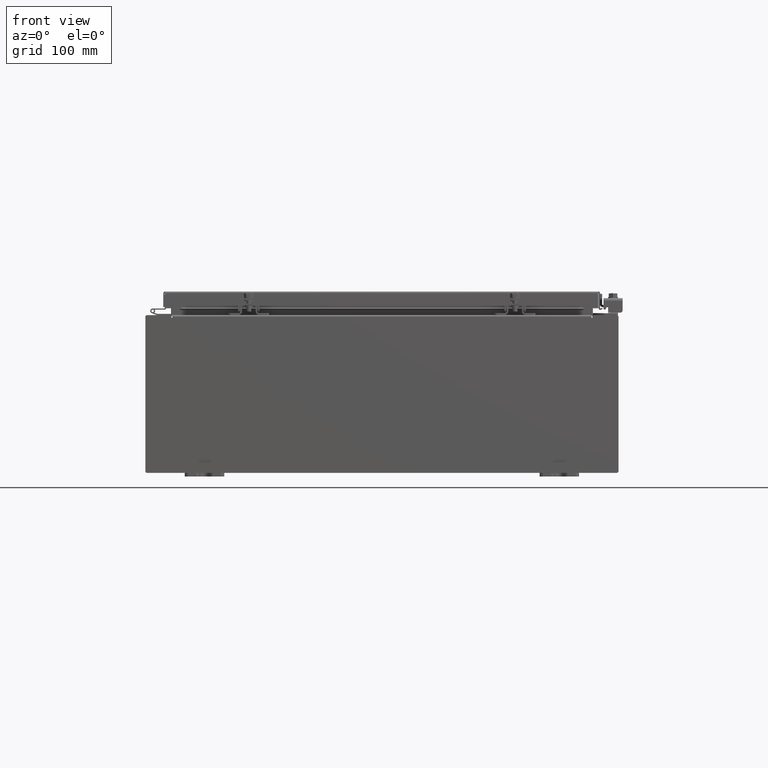
[diagram: clean part render]
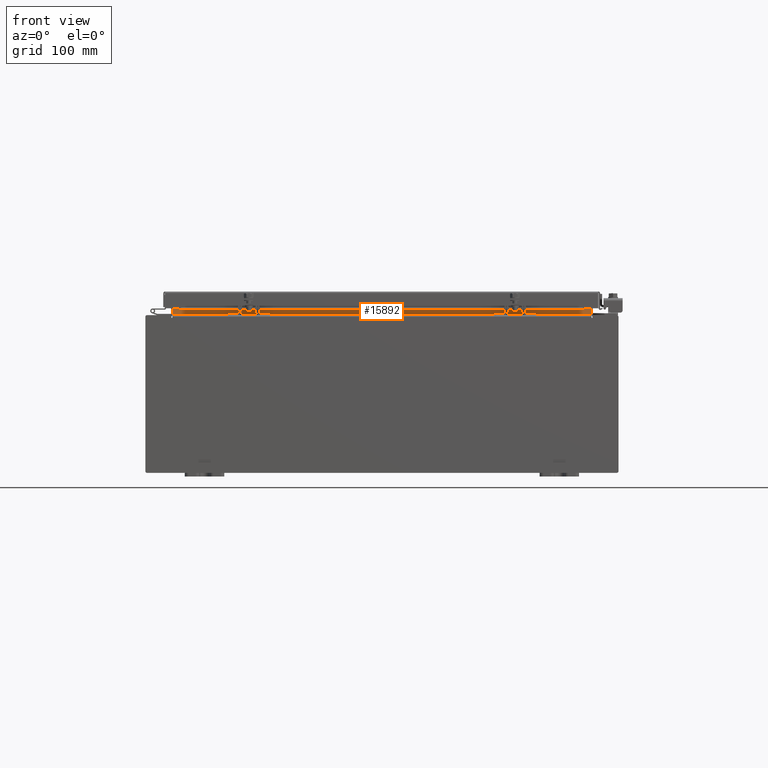
[diagram: same view with one face highlighted and labeled with its STEP entity id]
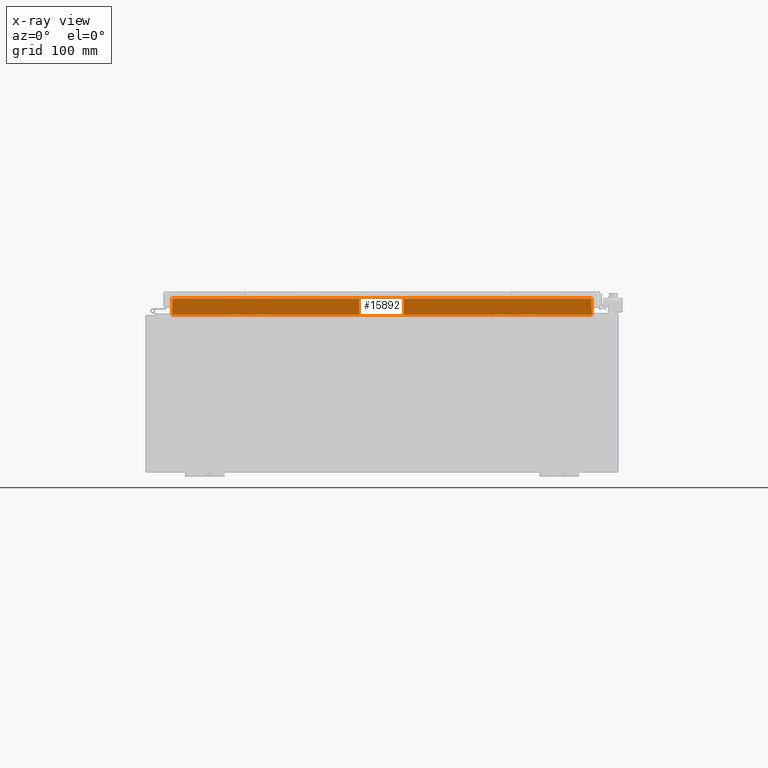
[diagram: x-ray of the same camera — body ghosted, the highlighted face saturated]
A machine part, front view. The second image highlights one B-rep face of the part: STEP entity #15892.
The next image is the same camera in x-ray: the body ghosted, the highlighted face saturated — about 0% of this face is hidden behind the body in this view.
In plain terms, the highlighted planar face has unit normal (-0, -1, 0).
Its self-contained STEP definition (entity closure, byte-faithful):
#1411 = DIRECTION ( 'NONE',  ( 1.000000000000000000, 3.225867722578232700E-016, 9.735187006375754600E-016 ) ) ;
#1952 = VERTEX_POINT ( 'NONE', #5038 ) ;
#2064 = ORIENTED_EDGE ( 'NONE', *, *, #23531, .F. ) ;
#3090 = FACE_OUTER_BOUND ( 'NONE', #14329, .T. ) ;
#3839 = CARTESIAN_POINT ( 'NONE',  ( 10.63720000000001400, -1.300299999999999300, 4.837600000000017000 ) ) ;
#4108 = VERTEX_POINT ( 'NONE', #9337 ) ;
#4479 = EDGE_CURVE ( 'NONE', #28393, #4108, #32213, .T. ) ;
#4931 = CARTESIAN_POINT ( 'NONE',  ( 10.63720000000001400, -1.300299999999999300, 4.925300000000017800 ) ) ;
#5038 = CARTESIAN_POINT ( 'NONE',  ( -10.63720000000000400, -1.300299999999999300, 4.012999999999996300 ) ) ;
#8604 = EDGE_CURVE ( 'NONE', #15209, #1952, #30557, .T. ) ;
#9337 = CARTESIAN_POINT ( 'NONE',  ( 10.63720000000001400, -1.300299999999999300, 4.837600000000017000 ) ) ;
#9916 = DIRECTION ( 'NONE',  ( 9.992007221626408900E-016, -2.013110121372521300E-016, 1.000000000000000000 ) ) ;
#10433 = EDGE_CURVE ( 'NONE', #4108, #15209, #10535, .T. ) ;
#10535 = LINE ( 'NONE', #3839, #30023 ) ;
#10979 = VECTOR ( 'NONE', #1411, 39.37007874015748100 ) ;
#11157 = PLANE ( 'NONE',  #19848 ) ;
#11561 = CARTESIAN_POINT ( 'NONE',  ( -10.63720000000000200, -1.300299999999999300, 4.012999999999996300 ) ) ;
#13732 = DIRECTION ( 'NONE',  ( 3.225867722578236700E-016, 1.000000000000000000, 2.013110121372518100E-016 ) ) ;
#14329 = EDGE_LOOP ( 'NONE', ( #18781, #26317, #23981, #2064 ) ) ;
#15209 = VERTEX_POINT ( 'NONE', #31509 ) ;
#15892 = ADVANCED_FACE ( 'NONE', ( #3090 ), #11157, .T. ) ;
#16544 = DIRECTION ( 'NONE',  ( -1.000000000000000000, -3.225867722578232700E-016, -9.992007221626408900E-016 ) ) ;
#17741 = LINE ( 'NONE', #11561, #10979 ) ;
#18655 = CARTESIAN_POINT ( 'NONE',  ( 10.63720000000000400, -1.300299999999999300, 4.013000000000016800 ) ) ;
#18781 = ORIENTED_EDGE ( 'NONE', *, *, #8604, .F. ) ;
#19848 = AXIS2_PLACEMENT_3D ( 'NONE', #31390, #13732, #31507 ) ;
#22977 = VECTOR ( 'NONE', #29191, 39.37007874015748100 ) ;
#23531 = EDGE_CURVE ( 'NONE', #1952, #28393, #17741, .T. ) ;
#23981 = ORIENTED_EDGE ( 'NONE', *, *, #4479, .F. ) ;
#26317 = ORIENTED_EDGE ( 'NONE', *, *, #10433, .F. ) ;
#26732 = CARTESIAN_POINT ( 'NONE',  ( -10.63720000000000200, -1.300299999999999300, 3.999999999999997800 ) ) ;
#28393 = VERTEX_POINT ( 'NONE', #18655 ) ;
#29191 = DIRECTION ( 'NONE',  ( -9.992007221626408900E-016, 2.013110121372521300E-016, -1.000000000000000000 ) ) ;
#30023 = VECTOR ( 'NONE', #16544, 39.37007874015748100 ) ;
#30557 = LINE ( 'NONE', #26732, #22977 ) ;
#31390 = CARTESIAN_POINT ( 'NONE',  ( -4.194595811711970300E-016, -1.300299999999999300, 3.278217592397115900E-015 ) ) ;
#31427 = VECTOR ( 'NONE', #9916, 39.37007874015748100 ) ;
#31507 = DIRECTION ( 'NONE',  ( 9.992007221626408900E-016, -2.013110121372521300E-016, 1.000000000000000000 ) ) ;
#31509 = CARTESIAN_POINT ( 'NONE',  ( -10.63719999999998800, -1.300299999999999300, 4.837599999999997500 ) ) ;
#32213 = LINE ( 'NONE', #4931, #31427 ) ;